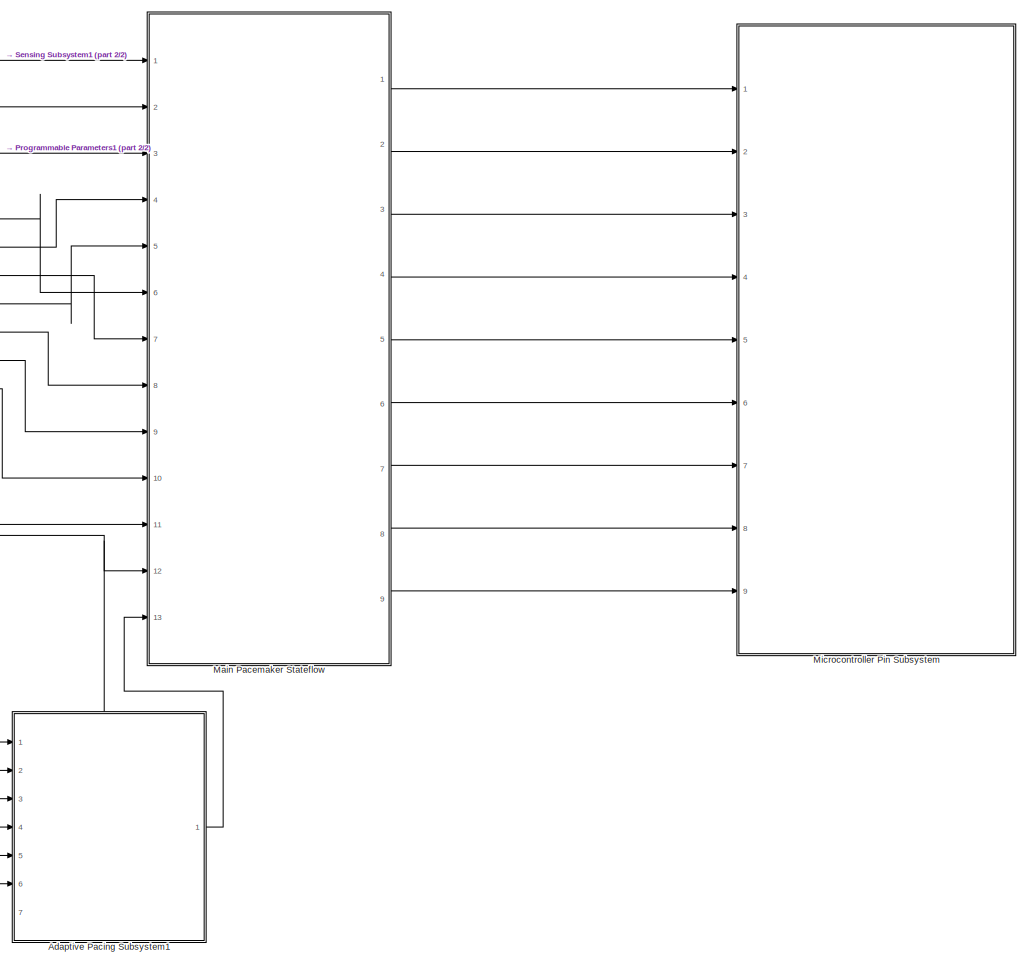
[diagram: root canvas - part 1/2, right side, full height]
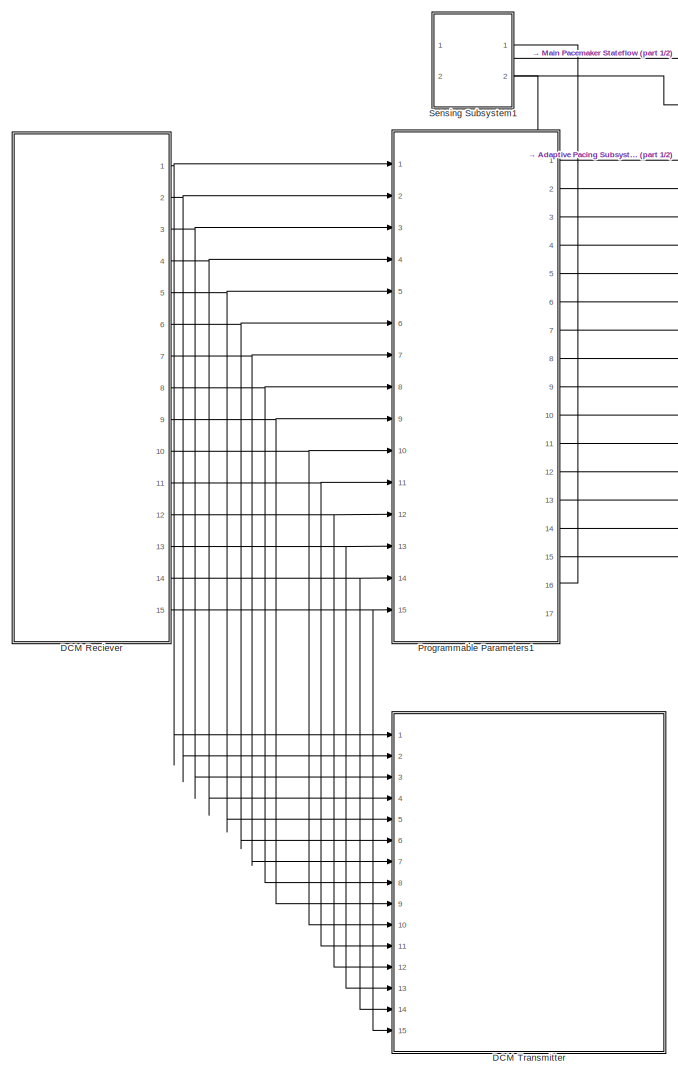
[diagram: root canvas - part 2/2, left side, full height]
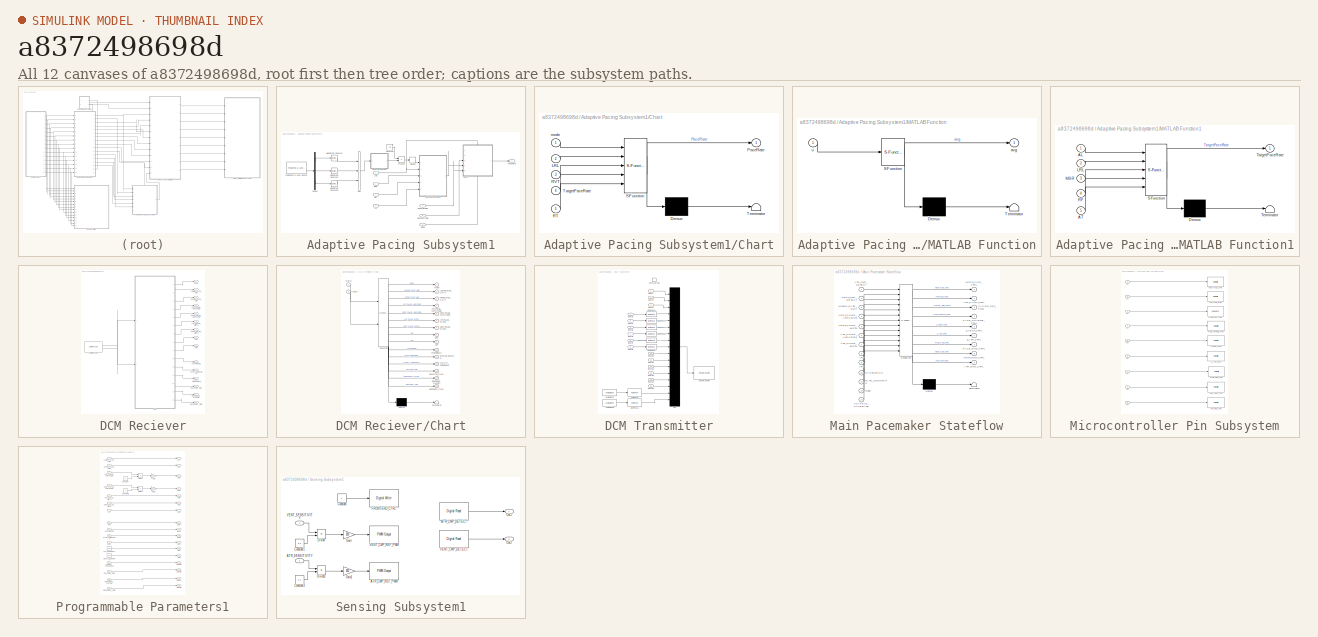
[diagram: thumbnail index - all 12 canvases of the model, root first then tree order]
MODEL slx_a8372498698d
KIND model
CONFIG AbsTol = auto
CONFIG EnableMultiTasking = on
CONFIG FixedStep = 1e-3
CONFIG MaxStep = auto
CONFIG MinStep = auto
CONFIG RelTol = 1e-3
CONFIG SampleTimeConstraint = Unconstrained
CONFIG Solver = FixedStepAuto
CONFIG SolverName = FixedStepAuto
CONFIG StartTime = 0.0
CONFIG StopTime = 10
BLOCK [SubSystem] Adaptive Pacing Subsystem1
  PortSchema = {"entries":[{"content":{"sides":[{"content":{"connectorIds":["In1","In2","In3","In4","In5","In6"]},"type":"ConnectorPlacement.EquallySpacedRectSide","uuid":"61dbb7e9-2003-4a43-93b8-10f5910df485"},{"content":{"connectorIds":["Out1"],"side":"RIGHT"},"type":"ConnectorPlacement.EquallySpacedRectSide","uuid":"cbb870a5-2f34-4900-b14d-ede4f510cea2"},{"content":{"connectorIds":["In7"],"side":"TOP"},"type"...<+275ch>
  Ports = [7, 1]
  RequestExecContextInheritance = off
BLOCK [Inport] Adaptive Pacing Subsystem1/AT
  Port = 6
BLOCK [Sum] Adaptive Pacing Subsystem1/Add
  IconShape = rectangular
  Inputs = +++
  Ports = [3, 1]
BLOCK [SubSystem] Adaptive Pacing Subsystem1/Chart
  ErrorFcn = Stateflow.Translate.translate
  PermitHierarchicalResolution = ExplicitOnly
  PortSchema = {"entries":[{"content":{"sides":[{"content":{"connectorIds":["In4","In5","In3"]},"type":"ConnectorPlacement.EquallySpacedRectSide","uuid":"73e2e136-6579-428c-8934-f1198b959902"},{"content":{"connectorIds":["Out1"],"side":"RIGHT"},"type":"ConnectorPlacement.EquallySpacedRectSide","uuid":"2b83c2c9-79e9-4b77-8584-7bf14575e11f"},{"content":{"connectorIds":["In2"],"side":"TOP"},"type":"ConnectorPlaceme...<+406ch>
  Ports = [5, 1]
  RequestExecContextInheritance = off
  SFBlockType = Chart
  TreatAsAtomicUnit = on
BLOCK [Demux] Adaptive Pacing Subsystem1/Chart/ Demux 
  Outputs = 1
  Ports = [1, 1]
BLOCK [S-Function] Adaptive Pacing Subsystem1/Chart/ SFunction 
  EnableBusSupport = on
  FunctionName = sf_sfun
  PortCounts = [5 2]
  Ports = [5, 2]
  SFcnIsStateOwnerBlock = off
  SFunctionDeploymentMode = off
  Tag = Stateflow S-Function 5
BLOCK [Terminator] Adaptive Pacing Subsystem1/Chart/ Terminator 
BLOCK [Inport] Adaptive Pacing Subsystem1/Chart/LRL
  Port = 2
BLOCK [Outport] Adaptive Pacing Subsystem1/Chart/PaceRate
BLOCK [Inport] Adaptive Pacing Subsystem1/Chart/RT
  Port = 5
BLOCK [Inport] Adaptive Pacing Subsystem1/Chart/RVT
  Port = 3
BLOCK [Inport] Adaptive Pacing Subsystem1/Chart/TargetPaceRate
  Port = 4
BLOCK [Inport] Adaptive Pacing Subsystem1/Chart/mode
BLOCK [Constant] Adaptive Pacing Subsystem1/Constant
  Value = 1/3
BLOCK [Demux] Adaptive Pacing Subsystem1/Demux
  Outputs = 3
  Ports = [1, 3]
BLOCK [Reference] Adaptive Pacing Subsystem1/FXOS8700 6-Axes Sensor  REF=frdmk64flib/FXOS8700 6-Axes Sensor
  Ports = [0, 2]
  SourceBlock = frdmk64flib/FXOS8700 6-Axes Sensor
  SourceProductBaseCode = EC_FRDM_K64F
  SourceType = freedomk64f.fxos8700
BLOCK [Inport] Adaptive Pacing Subsystem1/LRL
BLOCK [SubSystem] Adaptive Pacing Subsystem1/MATLAB Function
  ErrorFcn = Stateflow.Translate.translate
  PermitHierarchicalResolution = ExplicitOnly
  Ports = [1, 1]
  RequestExecContextInheritance = off
  SFBlockType = MATLAB Function
  TreatAsAtomicUnit = on
BLOCK [Demux] Adaptive Pacing Subsystem1/MATLAB Function/ Demux 
  Outputs = 1
  Ports = [1, 1]
BLOCK [S-Function] Adaptive Pacing Subsystem1/MATLAB Function/ SFunction 
  EnableBusSupport = on
  FunctionName = sf_sfun
  PortCounts = [1 2]
  Ports = [1, 2]
  SFcnIsStateOwnerBlock = off
  SFunctionDeploymentMode = off
  Tag = Stateflow S-Function 7
BLOCK [Terminator] Adaptive Pacing Subsystem1/MATLAB Function/ Terminator 
BLOCK [Outport] Adaptive Pacing Subsystem1/MATLAB Function/avg
BLOCK [Inport] Adaptive Pacing Subsystem1/MATLAB Function/u
BLOCK [SubSystem] Adaptive Pacing Subsystem1/MATLAB Function1
  ErrorFcn = Stateflow.Translate.translate
  PermitHierarchicalResolution = ExplicitOnly
  Ports = [5, 1]
  RequestExecContextInheritance = off
  SFBlockType = MATLAB Function
  TreatAsAtomicUnit = on
BLOCK [Demux] Adaptive Pacing Subsystem1/MATLAB Function1/ Demux 
  Outputs = 1
  Ports = [1, 1]
BLOCK [S-Function] Adaptive Pacing Subsystem1/MATLAB Function1/ SFunction 
  EnableBusSupport = on
  FunctionName = sf_sfun
  PortCounts = [5 2]
  Ports = [5, 2]
  SFcnIsStateOwnerBlock = off
  SFunctionDeploymentMode = off
  Tag = Stateflow S-Function 8
BLOCK [Terminator] Adaptive Pacing Subsystem1/MATLAB Function1/ Terminator 
BLOCK [Inport] Adaptive Pacing Subsystem1/MATLAB Function1/AL
BLOCK [Inport] Adaptive Pacing Subsystem1/MATLAB Function1/AT
  Port = 5
BLOCK [Inport] Adaptive Pacing Subsystem1/MATLAB Function1/LRL
  Port = 2
BLOCK [Inport] Adaptive Pacing Subsystem1/MATLAB Function1/MSR
  Port = 3
BLOCK [Inport] Adaptive Pacing Subsystem1/MATLAB Function1/RF
  Port = 4
BLOCK [Outport] Adaptive Pacing Subsystem1/MATLAB Function1/TargetPaceRate
BLOCK [Inport] Adaptive Pacing Subsystem1/MSR
  Port = 2
BLOCK [Math] Adaptive Pacing Subsystem1/Magnitude Squared
  Operator = magnitude^2
  Ports = [1, 1]
BLOCK [Math] Adaptive Pacing Subsystem1/Magnitude Squared1
  Operator = magnitude^2
  Ports = [1, 1]
BLOCK [Math] Adaptive Pacing Subsystem1/Magnitude Squared2
  Operator = magnitude^2
  Ports = [1, 1]
BLOCK [Outport] Adaptive Pacing Subsystem1/PaceRate
BLOCK [Product] Adaptive Pacing Subsystem1/Product
  Ports = [2, 1]
BLOCK [Inport] Adaptive Pacing Subsystem1/RF
  Port = 3
BLOCK [Inport] Adaptive Pacing Subsystem1/ReactionTime
  Port = 4
BLOCK [Inport] Adaptive Pacing Subsystem1/RecoveryTime
  Port = 5
BLOCK [Rounding] Adaptive Pacing Subsystem1/Round
  Operator = round
BLOCK [Inport] Adaptive Pacing Subsystem1/mode
  Port = 7
BLOCK [SubSystem] DCM Reciever
  Ports = [0, 15]
  RequestExecContextInheritance = off
BLOCK [Outport] DCM Reciever/ACTIVITY_THRESHOLD
  Port = 12
BLOCK [Outport] DCM Reciever/ARP
  Port = 9
BLOCK [Outport] DCM Reciever/ATR_PULSE_AMPLITUDE
  Port = 4
BLOCK [Outport] DCM Reciever/ATR_PULSE_WIDTH
  Port = 6
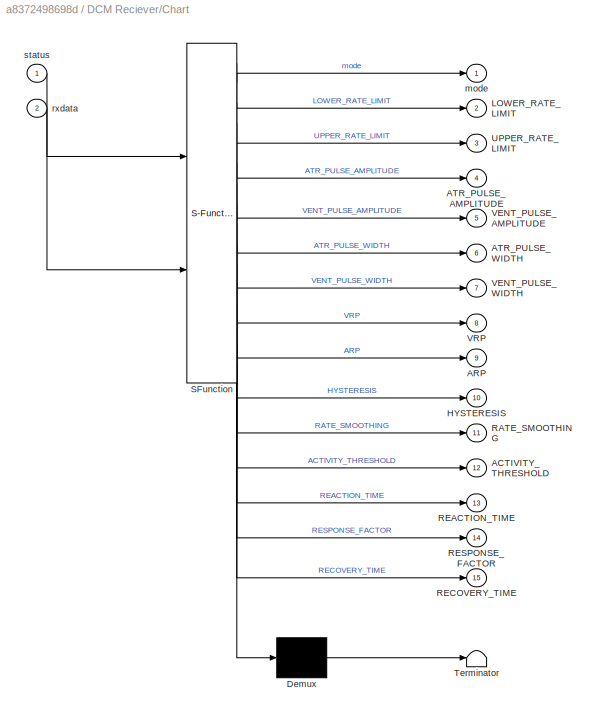
BLOCK [SubSystem] DCM Reciever/Chart
  ErrorFcn = Stateflow.Translate.translate
  PermitHierarchicalResolution = ExplicitOnly
  PortSchema = {"entries":[{"content":{"sides":[{"content":{"connectorIds":["In2","In1"]},"type":"ConnectorPlacement.EquallySpacedRectSide","uuid":"86a0e5b4-c807-4287-9f41-a7f218213397"},{"content":{"connectorIds":["Out1","Out2","Out3","Out4","Out5","Out6","Out7","Out8","Out9","Out10","Out11","Out12","Out13","Out14","Out15"],"side":"RIGHT"},"type":"ConnectorPlacement.EquallySpacedRectSide","uuid":"103aaf26-9f93-...<+352ch>
  Ports = [2, 15]
  RequestExecContextInheritance = off
  SFBlockType = Chart
  TreatAsAtomicUnit = on
BLOCK [Demux] DCM Reciever/Chart/ Demux 
  Outputs = 1
  Ports = [1, 1]
BLOCK [S-Function] DCM Reciever/Chart/ SFunction 
  EnableBusSupport = on
  FunctionName = sf_sfun
  PortCounts = [2 16]
  Ports = [2, 16]
  SFcnIsStateOwnerBlock = off
  SFunctionDeploymentMode = off
  Tag = Stateflow S-Function 6
BLOCK [Terminator] DCM Reciever/Chart/ Terminator 
BLOCK [Outport] DCM Reciever/Chart/ACTIVITY_THRESHOLD
  Port = 12
BLOCK [Outport] DCM Reciever/Chart/ARP
  Port = 9
BLOCK [Outport] DCM Reciever/Chart/ATR_PULSE_AMPLITUDE
  Port = 4
BLOCK [Outport] DCM Reciever/Chart/ATR_PULSE_WIDTH
  Port = 6
BLOCK [Outport] DCM Reciever/Chart/HYSTERESIS
  Port = 10
BLOCK [Outport] DCM Reciever/Chart/LOWER_RATE_LIMIT
  Port = 2
BLOCK [Outport] DCM Reciever/Chart/RATE_SMOOTHING
  Port = 11
BLOCK [Outport] DCM Reciever/Chart/REACTION_TIME
  Port = 13
BLOCK [Outport] DCM Reciever/Chart/RECOVERY_TIME
  Port = 15
BLOCK [Outport] DCM Reciever/Chart/RESPONSE_FACTOR
  Port = 14
BLOCK [Outport] DCM Reciever/Chart/UPPER_RATE_LIMIT
  Port = 3
BLOCK [Outport] DCM Reciever/Chart/VENT_PULSE_AMPLITUDE
  Port = 5
BLOCK [Outport] DCM Reciever/Chart/VENT_PULSE_WIDTH
  Port = 7
BLOCK [Outport] DCM Reciever/Chart/VRP
  Port = 8
BLOCK [Outport] DCM Reciever/Chart/mode
BLOCK [Inport] DCM Reciever/Chart/rxdata
  Port = 2
BLOCK [Inport] DCM Reciever/Chart/status
BLOCK [Outport] DCM Reciever/HYSTERESIS
  Port = 10
BLOCK [Outport] DCM Reciever/LOWER_RATE_LIMIT
  Port = 2
BLOCK [Outport] DCM Reciever/RATE_SMOOTHING
  Port = 11
BLOCK [Outport] DCM Reciever/REACTION_TIME
  Port = 13
BLOCK [Outport] DCM Reciever/RECOVERY_TIME
  Port = 15
BLOCK [Outport] DCM Reciever/RESPONSE_FACTOR
  Port = 14
BLOCK [Reference] DCM Reciever/Serial Receive  REF=frdmk64flib/Serial Receive
  Ports = [0, 2]
  SourceBlock = frdmk64flib/Serial Receive
  SourceProductBaseCode = EC_FRDM_K64F
  SourceType = freedomk64f.SCIRead
BLOCK [Outport] DCM Reciever/UPPER_RATE_LIMIT
  Port = 3
BLOCK [Outport] DCM Reciever/VENT_PULSE_AMPLITUDE
  Port = 5
BLOCK [Outport] DCM Reciever/VENT_PULSE_WIDTH
  Port = 7
BLOCK [Outport] DCM Reciever/VRP
  Port = 8
BLOCK [Outport] DCM Reciever/mode
BLOCK [SubSystem] DCM Transmitter
  Ports = [15, 0, 0, 1]
  RequestExecContextInheritance = off
BLOCK [Reference] DCM Transmitter/Analog Input  REF=frdmk64flib/Analog Input
  Ports = [0, 1]
  SourceBlock = frdmk64flib/Analog Input
  SourceProductBaseCode = EC_FRDM_K64F
  SourceType = freedomk64f.AnalogInput
BLOCK [Reference] DCM Transmitter/Analog Input1  REF=frdmk64flib/Analog Input
  Ports = [0, 1]
  SourceBlock = frdmk64flib/Analog Input
  SourceProductBaseCode = EC_FRDM_K64F
  SourceType = freedomk64f.AnalogInput
BLOCK [Reference] DCM Transmitter/Byte Pack  REF=etargetslib/Byte Pack
  Ports = [1, 1]
  SourceBlock = etargetslib/Byte Pack
  SourceProductBaseCode = ME
  SourceType = Byte pack
BLOCK [Reference] DCM Transmitter/Byte Pack1  REF=etargetslib/Byte Pack
  Ports = [1, 1]
  SourceBlock = etargetslib/Byte Pack
  SourceProductBaseCode = ME
  SourceType = Byte pack
BLOCK [Reference] DCM Transmitter/Byte Pack2  REF=etargetslib/Byte Pack
  Ports = [1, 1]
  SourceBlock = etargetslib/Byte Pack
  SourceProductBaseCode = ME
  SourceType = Byte pack
BLOCK [Reference] DCM Transmitter/Byte Pack3  REF=etargetslib/Byte Pack
  Ports = [1, 1]
  SourceBlock = etargetslib/Byte Pack
  SourceProductBaseCode = ME
  SourceType = Byte pack
BLOCK [Reference] DCM Transmitter/Byte Pack4  REF=etargetslib/Byte Pack
  Ports = [1, 1]
  SourceBlock = etargetslib/Byte Pack
  SourceProductBaseCode = ME
  SourceType = Byte pack
BLOCK [Reference] DCM Transmitter/Byte Pack5  REF=etargetslib/Byte Pack
  Ports = [1, 1]
  SourceBlock = etargetslib/Byte Pack
  SourceProductBaseCode = ME
  SourceType = Byte pack
BLOCK [Reference] DCM Transmitter/Byte Pack6  REF=etargetslib/Byte Pack
  Ports = [1, 1]
  SourceBlock = etargetslib/Byte Pack
  SourceProductBaseCode = ME
  SourceType = Byte pack
BLOCK [Reference] DCM Transmitter/Byte Pack7  REF=etargetslib/Byte Pack
  Ports = [1, 1]
  SourceBlock = etargetslib/Byte Pack
  SourceProductBaseCode = ME
  SourceType = Byte pack
BLOCK [Inport] DCM Transmitter/Inport
BLOCK [Inport] DCM Transmitter/Inport1
  Port = 2
BLOCK [Inport] DCM Transmitter/Inport10
  Port = 10
BLOCK [Inport] DCM Transmitter/Inport11
  Port = 11
BLOCK [Inport] DCM Transmitter/Inport12
  Port = 12
BLOCK [Inport] DCM Transmitter/Inport13
  Port = 13
BLOCK [Inport] DCM Transmitter/Inport14
  Port = 14
BLOCK [Inport] DCM Transmitter/Inport15
  Port = 15
BLOCK [Inport] DCM Transmitter/Inport2
  Port = 3
BLOCK [Inport] DCM Transmitter/Inport3
  Port = 4
BLOCK [Inport] DCM Transmitter/Inport4
  Port = 5
BLOCK [Inport] DCM Transmitter/Inport5
  Port = 6
BLOCK [Inport] DCM Transmitter/Inport6
  Port = 7
BLOCK [Inport] DCM Transmitter/Inport7
  Port = 8
BLOCK [Inport] DCM Transmitter/Inport8
  Port = 9
BLOCK [Mux] DCM Transmitter/Mux
  DisplayOption = bar
  Inputs = 17
  Ports = [17, 1]
BLOCK [Reference] DCM Transmitter/Serial Transmit  REF=frdmk64flib/Serial Transmit
  Ports = [1]
  SourceBlock = frdmk64flib/Serial Transmit
  SourceProductBaseCode = EC_FRDM_K64F
  SourceType = freedomk64f.SCIWrite
BLOCK [TriggerPort] DCM Transmitter/send_params
  FunctionName = send_params
  IsSimulinkFunction = on
  PortDimensions = 1
  Ports = []
  StatesWhenEnabling = held
  TriggerType = function-call
  VariantControl = Variant
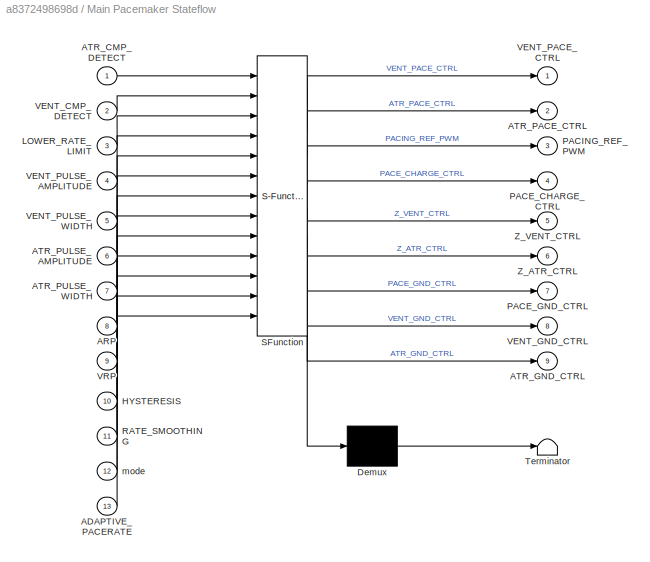
BLOCK [SubSystem] Main Pacemaker Stateflow
  ErrorFcn = Stateflow.Translate.translate
  PermitHierarchicalResolution = ExplicitOnly
  PortSchema = {"entries":[{"content":{"sides":[{"content":{"connectorIds":["In1","In2","In3","In6","In4","In7","In5","In8","In9","In10","In11","In12","In13"]},"type":"ConnectorPlacement.EquallySpacedRectSide","uuid":"e04c6c9d-b568-4760-aae3-37103fc4b8a5"},{"content":{"connectorIds":["Out1","Out2","Out3","Out4","Out5","Out6","Out7","Out8","Out9"],"side":"RIGHT"},"type":"ConnectorPlacement.EquallySpacedRectSide",...<+374ch>
  Ports = [13, 9]
  RequestExecContextInheritance = off
  SFBlockType = Chart
  TreatAsAtomicUnit = on
BLOCK [Demux] Main Pacemaker Stateflow/ Demux 
  Outputs = 1
  Ports = [1, 1]
BLOCK [S-Function] Main Pacemaker Stateflow/ SFunction 
  EnableBusSupport = on
  FunctionName = sf_sfun
  PortCounts = [13 10]
  Ports = [13, 10]
  SFcnIsStateOwnerBlock = off
  SFunctionDeploymentMode = off
  Tag = Stateflow S-Function 3
BLOCK [Terminator] Main Pacemaker Stateflow/ Terminator 
BLOCK [Inport] Main Pacemaker Stateflow/ADAPTIVE_PACERATE
  Port = 13
BLOCK [Inport] Main Pacemaker Stateflow/ARP
  Port = 8
BLOCK [Inport] Main Pacemaker Stateflow/ATR_CMP_DETECT
BLOCK [Outport] Main Pacemaker Stateflow/ATR_GND_CTRL
  Port = 9
BLOCK [Outport] Main Pacemaker Stateflow/ATR_PACE_CTRL
  Port = 2
BLOCK [Inport] Main Pacemaker Stateflow/ATR_PULSE_AMPLITUDE
  Port = 6
BLOCK [Inport] Main Pacemaker Stateflow/ATR_PULSE_WIDTH
  Port = 7
BLOCK [Inport] Main Pacemaker Stateflow/HYSTERESIS
  Port = 10
BLOCK [Inport] Main Pacemaker Stateflow/LOWER_RATE_LIMIT
  Port = 3
BLOCK [Outport] Main Pacemaker Stateflow/PACE_CHARGE_CTRL
  Port = 4
BLOCK [Outport] Main Pacemaker Stateflow/PACE_GND_CTRL
  Port = 7
BLOCK [Outport] Main Pacemaker Stateflow/PACING_REF_PWM
  Port = 3
BLOCK [Inport] Main Pacemaker Stateflow/RATE_SMOOTHING
  Port = 11
BLOCK [Inport] Main Pacemaker Stateflow/VENT_CMP_DETECT
  Port = 2
BLOCK [Outport] Main Pacemaker Stateflow/VENT_GND_CTRL
  Port = 8
BLOCK [Outport] Main Pacemaker Stateflow/VENT_PACE_CTRL
BLOCK [Inport] Main Pacemaker Stateflow/VENT_PULSE_AMPLITUDE
  Port = 4
BLOCK [Inport] Main Pacemaker Stateflow/VENT_PULSE_WIDTH
  Port = 5
BLOCK [Inport] Main Pacemaker Stateflow/VRP
  Port = 9
BLOCK [Outport] Main Pacemaker Stateflow/Z_ATR_CTRL
  Port = 6
BLOCK [Outport] Main Pacemaker Stateflow/Z_VENT_CTRL
  Port = 5
BLOCK [Inport] Main Pacemaker Stateflow/mode
  Port = 12
BLOCK [SubSystem] Microcontroller Pin Subsystem
  Ports = [9]
  RequestExecContextInheritance = off
BLOCK [Reference] Microcontroller Pin Subsystem/ATR_GND_CTRL  REF=frdmk64flib/Digital Write
  Ports = [1]
  SourceBlock = frdmk64flib/Digital Write
  SourceProductBaseCode = EC_FRDM_K64F
  SourceType = freedomk64f.DigitalWrite
BLOCK [Reference] Microcontroller Pin Subsystem/ATR_PACE_CTRL  REF=frdmk64flib/Digital Write
  Ports = [1]
  SourceBlock = frdmk64flib/Digital Write
  SourceProductBaseCode = EC_FRDM_K64F
  SourceType = freedomk64f.DigitalWrite
BLOCK [Inport] Microcontroller Pin Subsystem/In1
BLOCK [Inport] Microcontroller Pin Subsystem/In2
  Port = 2
BLOCK [Inport] Microcontroller Pin Subsystem/In3
  Port = 3
BLOCK [Inport] Microcontroller Pin Subsystem/In4
  Port = 4
BLOCK [Inport] Microcontroller Pin Subsystem/In5
  Port = 5
BLOCK [Inport] Microcontroller Pin Subsystem/In6
  Port = 6
BLOCK [Inport] Microcontroller Pin Subsystem/In7
  Port = 7
BLOCK [Inport] Microcontroller Pin Subsystem/In8
  Port = 8
BLOCK [Inport] Microcontroller Pin Subsystem/In9
  Port = 9
BLOCK [Reference] Microcontroller Pin Subsystem/PACE_CHARGE_CTRL  REF=frdmk64flib/Digital Write
  Ports = [1]
  SourceBlock = frdmk64flib/Digital Write
  SourceProductBaseCode = EC_FRDM_K64F
  SourceType = freedomk64f.DigitalWrite
BLOCK [Reference] Microcontroller Pin Subsystem/PACE_GND_CTRL  REF=frdmk64flib/Digital Write
  Ports = [1]
  SourceBlock = frdmk64flib/Digital Write
  SourceProductBaseCode = EC_FRDM_K64F
  SourceType = freedomk64f.DigitalWrite
BLOCK [Reference] Microcontroller Pin Subsystem/PACING_REF_PWM  REF=frdmk64flib/PWM Output
  Ports = [1]
  SourceBlock = frdmk64flib/PWM Output
  SourceProductBaseCode = EC_FRDM_K64F
  SourceType = freedomk64f.PWMOutput
BLOCK [Reference] Microcontroller Pin Subsystem/VENT_GND_CTRL  REF=frdmk64flib/Digital Write
  Ports = [1]
  SourceBlock = frdmk64flib/Digital Write
  SourceProductBaseCode = EC_FRDM_K64F
  SourceType = freedomk64f.DigitalWrite
BLOCK [Reference] Microcontroller Pin Subsystem/VENT_PACE_CTRL  REF=frdmk64flib/Digital Write
  Ports = [1]
  SourceBlock = frdmk64flib/Digital Write
  SourceProductBaseCode = EC_FRDM_K64F
  SourceType = freedomk64f.DigitalWrite
BLOCK [Reference] Microcontroller Pin Subsystem/Z_ATR_CTRL  REF=frdmk64flib/Digital Write
  Ports = [1]
  SourceBlock = frdmk64flib/Digital Write
  SourceProductBaseCode = EC_FRDM_K64F
  SourceType = freedomk64f.DigitalWrite
BLOCK [Reference] Microcontroller Pin Subsystem/Z_VENT_CTRL  REF=frdmk64flib/Digital Write
  Ports = [1]
  SourceBlock = frdmk64flib/Digital Write
  SourceProductBaseCode = EC_FRDM_K64F
  SourceType = freedomk64f.DigitalWrite
BLOCK [SubSystem] Programmable Parameters1
  PortSchema = {"entries":[{"content":{"sides":[{"content":{"connectorIds":["In1","In2","In3","In4","In5","In6","In7","In8","In9","In10","In11","In12","In13","In14","In15"]},"type":"ConnectorPlacement.EquallySpacedRectSide","uuid":"a66c8e23-13e5-4abc-9e09-ab5de47ab8f3"},{"content":{"connectorIds":["Out1","Out2","Out3","Out4","Out5","Out6","Out7","Out8","Out9","Out10","Out11","Out12","Out13","Out14","Out15"],"sid...<+451ch>
  Ports = [15, 17]
  RequestExecContextInheritance = off
BLOCK [Inport] Programmable Parameters1/ACTIVITY_THRESHOLD
  Port = 12
BLOCK [Inport] Programmable Parameters1/ARP
  Port = 9
BLOCK [Inport] Programmable Parameters1/ATR_PULSE_AMPLITUDE
  Port = 4
BLOCK [Inport] Programmable Parameters1/ATR_PULSE_WIDTH
  Port = 6
BLOCK [Constant] Programmable Parameters1/ATR_SENSITIVITY
  Value = 2.18
BLOCK [Constant] Programmable Parameters1/Constant
  Value = 5
BLOCK [Constant] Programmable Parameters1/Constant1
  Value = 5
BLOCK [Product] Programmable Parameters1/Divide
  Inputs = */
  Ports = [2, 1]
BLOCK [Product] Programmable Parameters1/Divide1
  Inputs = */
  Ports = [2, 1]
BLOCK [Gain] Programmable Parameters1/Gain
  Gain = 100
BLOCK [Gain] Programmable Parameters1/Gain1
  Gain = 100
BLOCK [Inport] Programmable Parameters1/HYSTERESIS
  Port = 10
BLOCK [Inport] Programmable Parameters1/LOWER_RATE_LIMIT
  Port = 2
BLOCK [Outport] Programmable Parameters1/LRL
BLOCK [Outport] Programmable Parameters1/Out11
  Port = 8
BLOCK [Outport] Programmable Parameters1/Out12
  Port = 9
BLOCK [Outport] Programmable Parameters1/Out13
  Port = 10
BLOCK [Outport] Programmable Parameters1/Out14
  Port = 11
BLOCK [Outport] Programmable Parameters1/Out3
  Port = 3
BLOCK [Outport] Programmable Parameters1/Out4
  Port = 4
BLOCK [Outport] Programmable Parameters1/Out5
  Port = 5
BLOCK [Outport] Programmable Parameters1/Out6
  Port = 6
BLOCK [Outport] Programmable Parameters1/Out7
  Port = 16
BLOCK [Outport] Programmable Parameters1/Out8
  Port = 17
BLOCK [Outport] Programmable Parameters1/Out9
  Port = 7
BLOCK [Outport] Programmable Parameters1/Outport
  Port = 14
BLOCK [Outport] Programmable Parameters1/Outport1
  Port = 15
BLOCK [Outport] Programmable Parameters1/Outport2
  Port = 13
BLOCK [Outport] Programmable Parameters1/Outport3
  Port = 12
BLOCK [Inport] Programmable Parameters1/RATE_SMOOTHING
  Port = 11
BLOCK [Inport] Programmable Parameters1/REACTION_TIME
  Port = 13
BLOCK [Inport] Programmable Parameters1/RECOVERY_TIME
  Port = 15
BLOCK [Inport] Programmable Parameters1/RESPONSE_FACTOR
  Port = 14
BLOCK [Inport] Programmable Parameters1/UPPER_RATE_LIMIT
  Port = 3
BLOCK [Outport] Programmable Parameters1/URL
  Port = 2
BLOCK [Inport] Programmable Parameters1/VENT_PULSE_AMPLITUDE
  Port = 5
BLOCK [Inport] Programmable Parameters1/VENT_PULSE_WIDTH
  Port = 7
BLOCK [Constant] Programmable Parameters1/VENT_SENSITIVITY
  Value = 1.91
BLOCK [Inport] Programmable Parameters1/VRP
  Port = 8
BLOCK [Inport] Programmable Parameters1/mode
BLOCK [SubSystem] Sensing Subsystem1
  NameLocation = top
  PortSchema = {"entries":[{"content":{"sides":[{"content":{},"type":"ConnectorPlacement.EquallySpacedRectSide","uuid":"02e0911b-3253-486a-acb8-f1ba1f788aa5"},{"content":{"connectorIds":["Out1","Out2"],"side":"RIGHT"},"type":"ConnectorPlacement.EquallySpacedRectSide","uuid":"66620bda-3110-4f43-a68e-d3775ac902e4"},{"content":{"side":"TOP"},"type":"ConnectorPlacement.EquallySpacedRectSide","uuid":"5a7389cd-e024-43...<+362ch>
  Ports = [2, 2]
  RequestExecContextInheritance = off
BLOCK [Reference] Sensing Subsystem1/ATR_CMP_DETECT  REF=frdmk64flib/Digital Read
  Ports = [0, 1]
  SourceBlock = frdmk64flib/Digital Read
  SourceProductBaseCode = EC_FRDM_K64F
  SourceType = freedomk64f.DigitalRead
BLOCK [Reference] Sensing Subsystem1/ATR_CMP_REF_PWM  REF=frdmk64flib/PWM Output
  Ports = [1]
  SourceBlock = frdmk64flib/PWM Output
  SourceProductBaseCode = EC_FRDM_K64F
  SourceType = freedomk64f.PWMOutput
BLOCK [Inport] Sensing Subsystem1/ATR_SENSITIVITY
  NameLocation = top
  Port = 2
BLOCK [Constant] Sensing Subsystem1/Constant
BLOCK [Constant] Sensing Subsystem1/Constant1
  Value = 3.3
BLOCK [Constant] Sensing Subsystem1/Constant3
  Value = 3.3
BLOCK [Product] Sensing Subsystem1/Divide
  Inputs = */
  Ports = [2, 1]
BLOCK [Product] Sensing Subsystem1/Divide1
  Inputs = */
  Ports = [2, 1]
BLOCK [Reference] Sensing Subsystem1/FRONTEND_CTRL  REF=frdmk64flib/Digital Write
  Ports = [1]
  SourceBlock = frdmk64flib/Digital Write
  SourceProductBaseCode = EC_FRDM_K64F
  SourceType = freedomk64f.DigitalWrite
BLOCK [Gain] Sensing Subsystem1/Gain
  Gain = 100
BLOCK [Gain] Sensing Subsystem1/Gain1
  Gain = 100
BLOCK [Outport] Sensing Subsystem1/Out1
BLOCK [Outport] Sensing Subsystem1/Out2
  Port = 2
BLOCK [Reference] Sensing Subsystem1/VENT_CMP_DETECT  REF=frdmk64flib/Digital Read
  Ports = [0, 1]
  SourceBlock = frdmk64flib/Digital Read
  SourceProductBaseCode = EC_FRDM_K64F
  SourceType = freedomk64f.DigitalRead
BLOCK [Reference] Sensing Subsystem1/VENT_CMP_REF_PWM  REF=frdmk64flib/PWM Output
  Ports = [1]
  SourceBlock = frdmk64flib/PWM Output
  SourceProductBaseCode = EC_FRDM_K64F
  SourceType = freedomk64f.PWMOutput
BLOCK [Inport] Sensing Subsystem1/VENT_SENSITIVITY
  NameLocation = top
LINE Adaptive Pacing Subsystem1/AT:1 -> Adaptive Pacing Subsystem1/MATLAB Function1:5
LINE Adaptive Pacing Subsystem1/Add:1 -> Adaptive Pacing Subsystem1/MATLAB Function:1
LINE Adaptive Pacing Subsystem1/Chart:1 -> Adaptive Pacing Subsystem1/PaceRate:1
LINE Adaptive Pacing Subsystem1/Constant:1 -> Adaptive Pacing Subsystem1/Product:1
LINE Adaptive Pacing Subsystem1/Demux:1 -> Adaptive Pacing Subsystem1/Magnitude Squared:1
LINE Adaptive Pacing Subsystem1/Demux:2 -> Adaptive Pacing Subsystem1/Magnitude Squared1:1
LINE Adaptive Pacing Subsystem1/Demux:3 -> Adaptive Pacing Subsystem1/Magnitude Squared2:1
LINE Adaptive Pacing Subsystem1/FXOS8700 6-Axes Sensor:2 -> Adaptive Pacing Subsystem1/Demux:1
NET Adaptive Pacing Subsystem1/LRL:1 -> Adaptive Pacing Subsystem1/Chart:2, Adaptive Pacing Subsystem1/MATLAB Function1:2
LINE Adaptive Pacing Subsystem1/MATLAB Function1:1 -> Adaptive Pacing Subsystem1/Chart:4
LINE Adaptive Pacing Subsystem1/MATLAB Function:1 -> Adaptive Pacing Subsystem1/Product:2
LINE Adaptive Pacing Subsystem1/MSR:1 -> Adaptive Pacing Subsystem1/MATLAB Function1:3
LINE Adaptive Pacing Subsystem1/Magnitude Squared1:1 -> Adaptive Pacing Subsystem1/Add:2
LINE Adaptive Pacing Subsystem1/Magnitude Squared2:1 -> Adaptive Pacing Subsystem1/Add:3
LINE Adaptive Pacing Subsystem1/Magnitude Squared:1 -> Adaptive Pacing Subsystem1/Add:1
LINE Adaptive Pacing Subsystem1/Product:1 -> Adaptive Pacing Subsystem1/Round:1
LINE Adaptive Pacing Subsystem1/RF:1 -> Adaptive Pacing Subsystem1/MATLAB Function1:4
LINE Adaptive Pacing Subsystem1/ReactionTime:1 -> Adaptive Pacing Subsystem1/Chart:5
LINE Adaptive Pacing Subsystem1/RecoveryTime:1 -> Adaptive Pacing Subsystem1/Chart:3
LINE Adaptive Pacing Subsystem1/Round:1 -> Adaptive Pacing Subsystem1/MATLAB Function1:1
LINE Adaptive Pacing Subsystem1/mode:1 -> Adaptive Pacing Subsystem1/Chart:1
LINE Adaptive Pacing Subsystem1:1 -> Main Pacemaker Stateflow:13
LINE DCM Reciever/Chart:1 -> DCM Reciever/mode:1
LINE DCM Reciever/Chart:10 -> DCM Reciever/HYSTERESIS:1
LINE DCM Reciever/Chart:11 -> DCM Reciever/RATE_SMOOTHING:1
LINE DCM Reciever/Chart:12 -> DCM Reciever/ACTIVITY_THRESHOLD:1
LINE DCM Reciever/Chart:13 -> DCM Reciever/REACTION_TIME:1
LINE DCM Reciever/Chart:14 -> DCM Reciever/RESPONSE_FACTOR:1
LINE DCM Reciever/Chart:15 -> DCM Reciever/RECOVERY_TIME:1
LINE DCM Reciever/Chart:2 -> DCM Reciever/LOWER_RATE_LIMIT:1
LINE DCM Reciever/Chart:3 -> DCM Reciever/UPPER_RATE_LIMIT:1
LINE DCM Reciever/Chart:4 -> DCM Reciever/ATR_PULSE_AMPLITUDE:1
LINE DCM Reciever/Chart:5 -> DCM Reciever/VENT_PULSE_AMPLITUDE:1
LINE DCM Reciever/Chart:6 -> DCM Reciever/ATR_PULSE_WIDTH:1
LINE DCM Reciever/Chart:7 -> DCM Reciever/VENT_PULSE_WIDTH:1
LINE DCM Reciever/Chart:8 -> DCM Reciever/VRP:1
LINE DCM Reciever/Chart:9 -> DCM Reciever/ARP:1
LINE DCM Reciever/Serial Receive:1 -> DCM Reciever/Chart:2
LINE DCM Reciever/Serial Receive:2 -> DCM Reciever/Chart:1
NET DCM Reciever:1 -> DCM Transmitter:1, Programmable Parameters1:1
NET DCM Reciever:10 -> DCM Transmitter:10, Programmable Parameters1:10
NET DCM Reciever:11 -> DCM Transmitter:11, Programmable Parameters1:11
NET DCM Reciever:12 -> DCM Transmitter:12, Programmable Parameters1:12
NET DCM Reciever:13 -> DCM Transmitter:13, Programmable Parameters1:13
NET DCM Reciever:14 -> DCM Transmitter:14, Programmable Parameters1:14
NET DCM Reciever:15 -> DCM Transmitter:15, Programmable Parameters1:15
NET DCM Reciever:2 -> DCM Transmitter:2, Programmable Parameters1:2
NET DCM Reciever:3 -> DCM Transmitter:3, Programmable Parameters1:3
NET DCM Reciever:4 -> DCM Transmitter:4, Programmable Parameters1:4
NET DCM Reciever:5 -> DCM Transmitter:5, Programmable Parameters1:5
NET DCM Reciever:6 -> DCM Transmitter:6, Programmable Parameters1:6
NET DCM Reciever:7 -> DCM Transmitter:7, Programmable Parameters1:7
NET DCM Reciever:8 -> DCM Transmitter:8, Programmable Parameters1:8
NET DCM Reciever:9 -> DCM Transmitter:9, Programmable Parameters1:9
LINE DCM Transmitter/Analog Input1:1 -> DCM Transmitter/Byte Pack1:1
LINE DCM Transmitter/Analog Input:1 -> DCM Transmitter/Byte Pack:1
LINE DCM Transmitter/Byte Pack1:1 -> DCM Transmitter/Mux:17
LINE DCM Transmitter/Byte Pack2:1 -> DCM Transmitter/Mux:4
LINE DCM Transmitter/Byte Pack3:1 -> DCM Transmitter/Mux:5
LINE DCM Transmitter/Byte Pack4:1 -> DCM Transmitter/Mux:6
LINE DCM Transmitter/Byte Pack5:1 -> DCM Transmitter/Mux:7
LINE DCM Transmitter/Byte Pack6:1 -> DCM Transmitter/Mux:8
LINE DCM Transmitter/Byte Pack7:1 -> DCM Transmitter/Mux:9
LINE DCM Transmitter/Byte Pack:1 -> DCM Transmitter/Mux:16
LINE DCM Transmitter/Inport10:1 -> DCM Transmitter/Mux:10
LINE DCM Transmitter/Inport11:1 -> DCM Transmitter/Mux:11
LINE DCM Transmitter/Inport12:1 -> DCM Transmitter/Mux:12
LINE DCM Transmitter/Inport13:1 -> DCM Transmitter/Mux:13
LINE DCM Transmitter/Inport14:1 -> DCM Transmitter/Mux:14
LINE DCM Transmitter/Inport15:1 -> DCM Transmitter/Mux:15
LINE DCM Transmitter/Inport1:1 -> DCM Transmitter/Mux:2
LINE DCM Transmitter/Inport2:1 -> DCM Transmitter/Mux:3
LINE DCM Transmitter/Inport3:1 -> DCM Transmitter/Byte Pack2:1
LINE DCM Transmitter/Inport4:1 -> DCM Transmitter/Byte Pack3:1
LINE DCM Transmitter/Inport5:1 -> DCM Transmitter/Byte Pack4:1
LINE DCM Transmitter/Inport6:1 -> DCM Transmitter/Byte Pack5:1
LINE DCM Transmitter/Inport7:1 -> DCM Transmitter/Byte Pack6:1
LINE DCM Transmitter/Inport8:1 -> DCM Transmitter/Byte Pack7:1
LINE DCM Transmitter/Inport:1 -> DCM Transmitter/Mux:1
LINE DCM Transmitter/Mux:1 -> DCM Transmitter/Serial Transmit:1
LINE Main Pacemaker Stateflow:1 -> Microcontroller Pin Subsystem:1
LINE Main Pacemaker Stateflow:2 -> Microcontroller Pin Subsystem:2
LINE Main Pacemaker Stateflow:3 -> Microcontroller Pin Subsystem:3
LINE Main Pacemaker Stateflow:4 -> Microcontroller Pin Subsystem:4
LINE Main Pacemaker Stateflow:5 -> Microcontroller Pin Subsystem:5
LINE Main Pacemaker Stateflow:6 -> Microcontroller Pin Subsystem:6
LINE Main Pacemaker Stateflow:7 -> Microcontroller Pin Subsystem:7
LINE Main Pacemaker Stateflow:8 -> Microcontroller Pin Subsystem:8
LINE Main Pacemaker Stateflow:9 -> Microcontroller Pin Subsystem:9
LINE Microcontroller Pin Subsystem/In1:1 -> Microcontroller Pin Subsystem/VENT_PACE_CTRL:1
LINE Microcontroller Pin Subsystem/In2:1 -> Microcontroller Pin Subsystem/ATR_PACE_CTRL:1
LINE Microcontroller Pin Subsystem/In3:1 -> Microcontroller Pin Subsystem/PACING_REF_PWM:1
LINE Microcontroller Pin Subsystem/In4:1 -> Microcontroller Pin Subsystem/PACE_CHARGE_CTRL:1
LINE Microcontroller Pin Subsystem/In5:1 -> Microcontroller Pin Subsystem/Z_VENT_CTRL:1
LINE Microcontroller Pin Subsystem/In6:1 -> Microcontroller Pin Subsystem/Z_ATR_CTRL:1
LINE Microcontroller Pin Subsystem/In7:1 -> Microcontroller Pin Subsystem/PACE_GND_CTRL:1
LINE Microcontroller Pin Subsystem/In8:1 -> Microcontroller Pin Subsystem/VENT_GND_CTRL:1
LINE Microcontroller Pin Subsystem/In9:1 -> Microcontroller Pin Subsystem/ATR_GND_CTRL:1
LINE Programmable Parameters1/ACTIVITY_THRESHOLD:1 -> Programmable Parameters1/Outport3:1
LINE Programmable Parameters1/ARP:1 -> Programmable Parameters1/Out9:1
LINE Programmable Parameters1/ATR_PULSE_AMPLITUDE:1 -> Programmable Parameters1/Divide:1
LINE Programmable Parameters1/ATR_PULSE_WIDTH:1 -> Programmable Parameters1/Out5:1
LINE Programmable Parameters1/ATR_SENSITIVITY:1 -> Programmable Parameters1/Out7:1
LINE Programmable Parameters1/Constant1:1 -> Programmable Parameters1/Divide1:2
LINE Programmable Parameters1/Constant:1 -> Programmable Parameters1/Divide:2
LINE Programmable Parameters1/Divide1:1 -> Programmable Parameters1/Gain1:1
LINE Programmable Parameters1/Divide:1 -> Programmable Parameters1/Gain:1
LINE Programmable Parameters1/Gain1:1 -> Programmable Parameters1/Out4:1
LINE Programmable Parameters1/Gain:1 -> Programmable Parameters1/Out3:1
LINE Programmable Parameters1/HYSTERESIS:1 -> Programmable Parameters1/Out12:1
LINE Programmable Parameters1/LOWER_RATE_LIMIT:1 -> Programmable Parameters1/LRL:1
LINE Programmable Parameters1/RATE_SMOOTHING:1 -> Programmable Parameters1/Out13:1
LINE Programmable Parameters1/REACTION_TIME:1 -> Programmable Parameters1/Outport2:1
LINE Programmable Parameters1/RECOVERY_TIME:1 -> Programmable Parameters1/Outport1:1
LINE Programmable Parameters1/RESPONSE_FACTOR:1 -> Programmable Parameters1/Outport:1
LINE Programmable Parameters1/UPPER_RATE_LIMIT:1 -> Programmable Parameters1/URL:1
LINE Programmable Parameters1/VENT_PULSE_AMPLITUDE:1 -> Programmable Parameters1/Divide1:1
LINE Programmable Parameters1/VENT_PULSE_WIDTH:1 -> Programmable Parameters1/Out6:1
LINE Programmable Parameters1/VENT_SENSITIVITY:1 -> Programmable Parameters1/Out8:1
LINE Programmable Parameters1/VRP:1 -> Programmable Parameters1/Out11:1
LINE Programmable Parameters1/mode:1 -> Programmable Parameters1/Out14:1
NET Programmable Parameters1:1 -> Adaptive Pacing Subsystem1:1, Main Pacemaker Stateflow:3
LINE Programmable Parameters1:10 -> Main Pacemaker Stateflow:11
NET Programmable Parameters1:11 -> Adaptive Pacing Subsystem1:7, Main Pacemaker Stateflow:12
LINE Programmable Parameters1:12 -> Adaptive Pacing Subsystem1:6
LINE Programmable Parameters1:13 -> Adaptive Pacing Subsystem1:4
LINE Programmable Parameters1:14 -> Adaptive Pacing Subsystem1:3
LINE Programmable Parameters1:15 -> Adaptive Pacing Subsystem1:5
LINE Programmable Parameters1:16 -> Sensing Subsystem1:1
LINE Programmable Parameters1:17 -> Sensing Subsystem1:2
LINE Programmable Parameters1:2 -> Adaptive Pacing Subsystem1:2
LINE Programmable Parameters1:3 -> Main Pacemaker Stateflow:6
LINE Programmable Parameters1:4 -> Main Pacemaker Stateflow:4
LINE Programmable Parameters1:5 -> Main Pacemaker Stateflow:7
LINE Programmable Parameters1:6 -> Main Pacemaker Stateflow:5
LINE Programmable Parameters1:7 -> Main Pacemaker Stateflow:8
LINE Programmable Parameters1:8 -> Main Pacemaker Stateflow:9
LINE Programmable Parameters1:9 -> Main Pacemaker Stateflow:10
LINE Sensing Subsystem1/ATR_CMP_DETECT:1 -> Sensing Subsystem1/Out1:1
LINE Sensing Subsystem1/ATR_SENSITIVITY:1 -> Sensing Subsystem1/Divide1:1
LINE Sensing Subsystem1/Constant1:1 -> Sensing Subsystem1/Divide:2
LINE Sensing Subsystem1/Constant3:1 -> Sensing Subsystem1/Divide1:2
LINE Sensing Subsystem1/Constant:1 -> Sensing Subsystem1/FRONTEND_CTRL:1
LINE Sensing Subsystem1/Divide1:1 -> Sensing Subsystem1/Gain1:1
LINE Sensing Subsystem1/Divide:1 -> Sensing Subsystem1/Gain:1
LINE Sensing Subsystem1/Gain1:1 -> Sensing Subsystem1/ATR_CMP_REF_PWM:1
LINE Sensing Subsystem1/Gain:1 -> Sensing Subsystem1/VENT_CMP_REF_PWM:1
LINE Sensing Subsystem1/VENT_CMP_DETECT:1 -> Sensing Subsystem1/Out2:1
LINE Sensing Subsystem1/VENT_SENSITIVITY:1 -> Sensing Subsystem1/Divide:1
LINE Sensing Subsystem1:1 -> Main Pacemaker Stateflow:1
LINE Sensing Subsystem1:2 -> Main Pacemaker Stateflow:2
note: NET lines group one-source signal fan-out (src -> all destinations, sorted); 1:1 wires keep LINE
CHART Main Pacemaker Stateflow states=25 transitions=74
  STATE_LABEL 'Startup'
  STATE_LABEL 'VOO'
  STATE_LABEL 'PACING\n\nentry:\nPACE_CHARGE_CTRL = 0;\nPACE_GND_CTRL = 1;\nATR_PACE_CTRL = 0;\nATR_GND_CTRL = 0;\nZ_ATR_CTRL = 0;\nZ_VENT_CTRL = 0;\nVENT_GND_CTRL = 0;\nVENT_PACE_CTRL = 1;'
  STATE_LABEL 'CHARGING\n\nentry:\n%%Charging C22\nATR_PACE_CTRL = 0;\nVENT_PACE_CTRL = 0;\nPACE_CHARGE_CTRL = 1;\n%%Discharging Blocking Cap\nPACE_GND_CTRL = 1;\nZ_ATR_CTRL = 0;\nZ_VENT_CTRL = 0;\nATR_GND_CTRL = 0;\nVENT_GND_CTRL = 1;\nPACING_REF_PWM = VENT_PULSE_AMPLITUDE;\n'  <repeated x4 — deduplicated; at blocks: Main Pacemaker Stateflow>
  STATE_LABEL '%%Pace Ready\n[after(1/(double(LOWER_RATE_LIMIT)/60000) - double(VENT_PULSE_WIDTH), msec)]'
  STATE_LABEL '[mode == 1]'
  STATE_LABEL '[mode ~= 1]'
  STATE_LABEL '%%Recharge Ready\n[after(VENT_PULSE_WIDTH, msec)]'
  STATE_LABEL 'PACING\n\nentry:\nPACE_CHARGE_CTRL = 0;\nPACE_GND_CTRL = 1;\nATR_PACE_CTRL = 0;\nATR_GND_CTRL = 0;\nZ_ATR_CTRL = 0;\nZ_VENT_CTRL = 0;\nVENT_GND_CTRL = 0;\nVENT_PACE_CTRL = 1;'
  STATE_LABEL 'AOO'
  STATE_LABEL 'PACING\n\nentry:\nPACE_CHARGE_CTRL = 0;\nPACE_GND_CTRL = 1;\nATR_PACE_CTRL = 1;\nATR_GND_CTRL = 0;\nZ_ATR_CTRL = 0;\nZ_VENT_CTRL = 0;\nVENT_GND_CTRL = 0;\nVENT_PACE_CTRL = 0;'
  STATE_LABEL 'CHARGING\n\nentry:\n%%Charging C22\nATR_PACE_CTRL = 0;\nVENT_PACE_CTRL = 0;\nPACE_CHARGE_CTRL = 1;\n%%Discharging Blocking Cap\nPACE_GND_CTRL = 1;\nZ_ATR_CTRL = 0;\nZ_VENT_CTRL = 0;\nATR_GND_CTRL = 1;\nVENT_GND_CTRL = 0;\nPACING_REF_PWM = ATR_PULSE_AMPLITUDE;\n'  <repeated x3 — deduplicated; at blocks: Main Pacemaker Stateflow>
  STATE_LABEL '%%Pace Ready\n[after(1/(double(LOWER_RATE_LIMIT)/60000) - double(ATR_PULSE_WIDTH), msec)]'
  STATE_LABEL '[mode == 2]'
  STATE_LABEL '[mode ~= 2]'
  STATE_LABEL '%%Recharge Ready\n[after(ATR_PULSE_WIDTH, msec)]'
  STATE_LABEL 'PACING\n\nentry:\nPACE_CHARGE_CTRL = 0;\nPACE_GND_CTRL = 1;\nATR_PACE_CTRL = 1;\nATR_GND_CTRL = 0;\nZ_ATR_CTRL = 0;\nZ_VENT_CTRL = 0;\nVENT_GND_CTRL = 0;\nVENT_PACE_CTRL = 0;'
  STATE_LABEL 'VVI'
  STATE_LABEL 'PACING\n\nentry:\nPACE_CHARGE_CTRL = 0;\nPACE_GND_CTRL = 1;\nATR_PACE_CTRL = 0;\nATR_GND_CTRL = 0;\nZ_ATR_CTRL = 0;\nZ_VENT_CTRL = 0;\nVENT_GND_CTRL = 0;\nVENT_PACE_CTRL = 1;'
  STATE_LABEL '%%Pace Ready\n[after(1/(double(LOWER_RATE_LIMIT)/60000) - double(VENT_PULSE_WIDTH) - VRP, msec) && VENT_CMP_DETECT == false]'
  STATE_LABEL '[after(VRP, msec)]'
  STATE_LABEL '[VENT_CMP_DETECT == true]'
  STATE_LABEL '[mode == 3]'
  STATE_LABEL '[mode ~= 3]'
  STATE_LABEL '[after(VENT_PULSE_WIDTH, msec)]'
  STATE_LABEL 'PACING\n\nentry:\nPACE_CHARGE_CTRL = 0;\nPACE_GND_CTRL = 1;\nATR_PACE_CTRL = 0;\nATR_GND_CTRL = 0;\nZ_ATR_CTRL = 0;\nZ_VENT_CTRL = 0;\nVENT_GND_CTRL = 0;\nVENT_PACE_CTRL = 1;'
  STATE_LABEL 'AAI'
  STATE_LABEL 'PACING\n\nentry:\nPACE_CHARGE_CTRL = 0;\nPACE_GND_CTRL = 1;\nATR_PACE_CTRL = 1;\nATR_GND_CTRL = 0;\nZ_ATR_CTRL = 0;\nZ_VENT_CTRL = 0;\nVENT_GND_CTRL = 0;\nVENT_PACE_CTRL = 0;'
  STATE_LABEL '%%Pace Ready\n[after(1/(double(LOWER_RATE_LIMIT)/60000) - double(ATR_PULSE_WIDTH) - ARP, msec) && ATR_CMP_DETECT == false]'
  STATE_LABEL '[after(ARP, msec)]'
  STATE_LABEL '[ATR_CMP_DETECT == true]'
  STATE_LABEL '[mode == 4]'
  STATE_LABEL '[mode ~= 4]'
  STATE_LABEL '%%Recharge Ready\n[after(ATR_PULSE_WIDTH, msec)]'
  STATE_LABEL 'PACING\n\nentry:\nPACE_CHARGE_CTRL = 0;\nPACE_GND_CTRL = 1;\nATR_PACE_CTRL = 1;\nATR_GND_CTRL = 0;\nZ_ATR_CTRL = 0;\nZ_VENT_CTRL = 0;\nVENT_GND_CTRL = 0;\nVENT_PACE_CTRL = 0;'
CHART Adaptive Pacing Subsystem1/Chart states=4 transitions=9
  STATE_LABEL 'ResetPaceRate\nentry:\nPaceRate = double(LRL)'
  STATE_LABEL 'UpdatePaceRateStep\nentry:\nif PaceRate > TargetPaceRate\n    StepSize = double((PaceRate - TargetPaceRate) / (RVT* 60 * 1000))\nelseif PaceRate < TargetPaceRate\n    StepSize = double((TargetPaceRate - PaceRate) / (RT * 1000))\nelse\n    PaceRate = PaceRate;\n    StepSize = 0.0;\nend\n'
  STATE_LABEL 'IncreasePaceRate\nentry:\nif PaceRate < TargetPaceRate\n    PaceRate = PaceRate + StepSize;\nend'
  STATE_LABEL 'DecreasePaceRate\nentry:\nif PaceRate > TargetPaceRate\n    PaceRate = PaceRate - StepSize;\nend'
CHART DCM Reciever/Chart states=4 transitions=9
  STATE_LABEL "SET_PARAM\nentry:\nmode = rxdata(3)\nLOWER_RATE_LIMIT = rxdata(4);\nUPPER_RATE_LIMIT = rxdata(5);\nATR_PULSE_AMPLITUDE = typecast(rxdata(6:9), 'single');\nVENT_PULSE_AMPLITUDE = typecast(rxdata(10:13), 'single');\nATR_PULSE_WIDTH = typecast(rxdata(14:17), 'single');\nVENT_PULSE_WIDTH = typecast(rxdata(18:21), 'single');\nVRP = typecast(rxdata(22:23), 'uint16');\nARP = typecast(rxdata(24:25), 'uint16');\nHYST...<+193ch>"
  STATE_LABEL 'INITIAL\n%Set initial values of parameter\nmode = 9;\nLOWER_RATE_LIMIT = 60;\nUPPER_RATE_LIMIT = 120;\nATR_PULSE_AMPLITUDE = 3.5;\nVENT_PULSE_AMPLITUDE = 3.5;\nATR_PULSE_WIDTH = 0.4;\nVENT_PULSE_WIDTH = 0.4;\nVRP = 320;\nARP = 250;\nHYSTERESIS = 1;\nRATE_SMOOTHING = 1;\nACTIVITY_THRESHOLD = 4;\nREACTION_TIME = 30; % seconds\nRESPONSE_FACTOR = 8; %factor 1-16\nRECOVERY_TIME = 5; %s\n'
  STATE_LABEL 'STANDBY'
  STATE_LABEL 'ECHO_PARAM\nentry:\nsend_params();'
CHART Adaptive Pacing Subsystem1/MATLAB Function states=1 transitions=1
  STATE_LABEL 'eML_blk_kernel()'
  STATE_LABEL 'SCRIPT:\nfunction avg = movingAverage(u)\n    % Persistent variables to store buffer and index\n    persistent buffer index count;\n\n    % Number of samples for 1-second average\n    N = 20;\n\n    % Initialize buffer and index on first call\n    if isempty(buffer)\n        buffer = zeros(1, N); % Circular buffer\n        index = 1;            % Current write position\n        count = 0;            % Number ...<+307ch>'
CHART Adaptive Pacing Subsystem1/MATLAB Function1 states=1 transitions=1
  STATE_LABEL 'eML_blk_kernel()'
  STATE_LABEL 'SCRIPT:\nfunction TargetPaceRate = CalculatePacingRate(AL, LRL, MSR, RF, AT)\n\n    if AL < AT\n        TargetPaceRate = LRL;\n    else\n        TargetPaceRate = min(LRL + (AL - AT) * RF, MSR);\n    end\nend'
CHART  states=0 transitions=0
CHART  states=0 transitions=0
CHART  states=0 transitions=0
CHART  states=0 transitions=0
CHART  states=0 transitions=0
